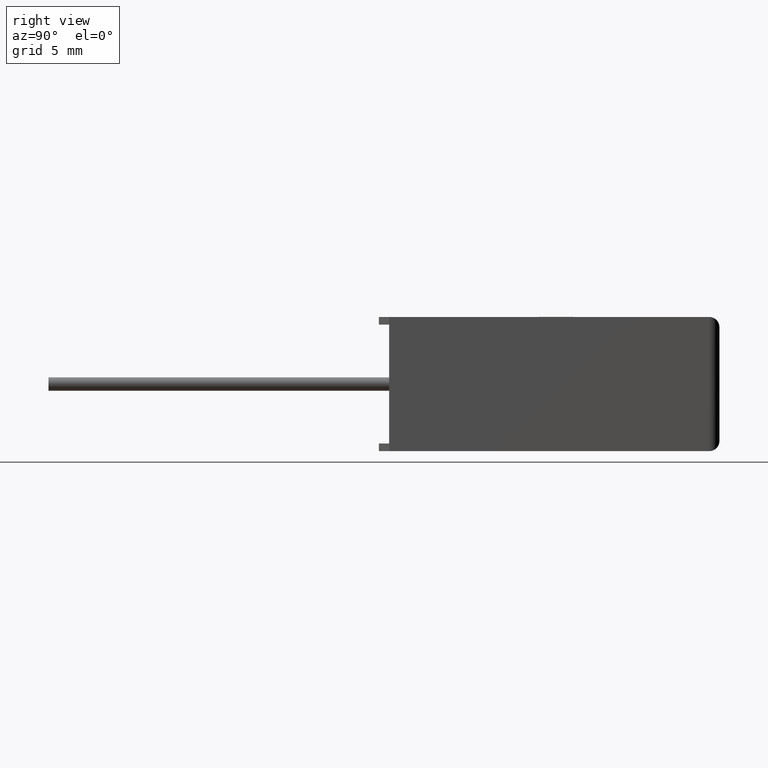
[diagram: clean part render]
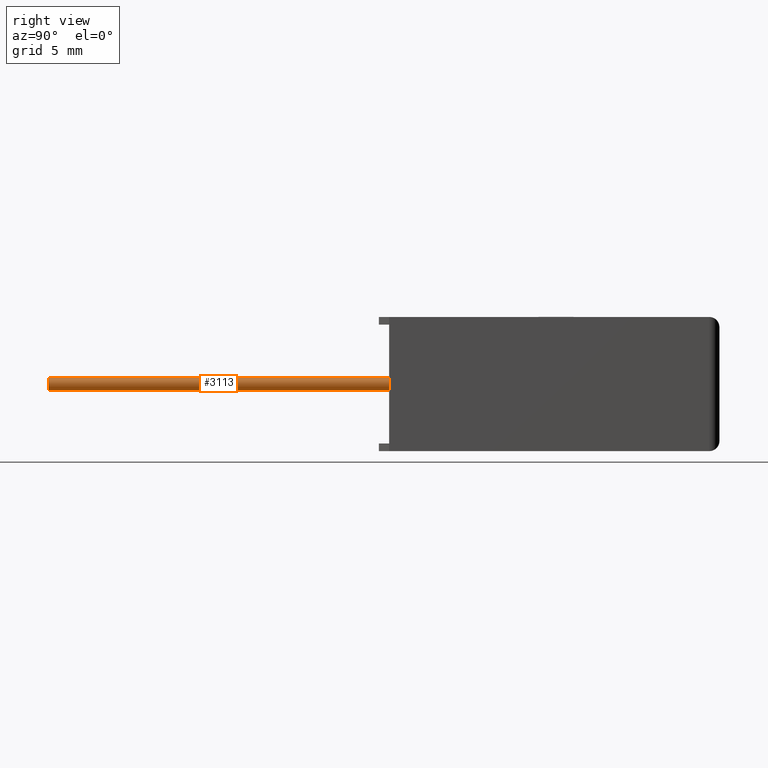
[diagram: same view with one face highlighted and labeled with its STEP entity id]
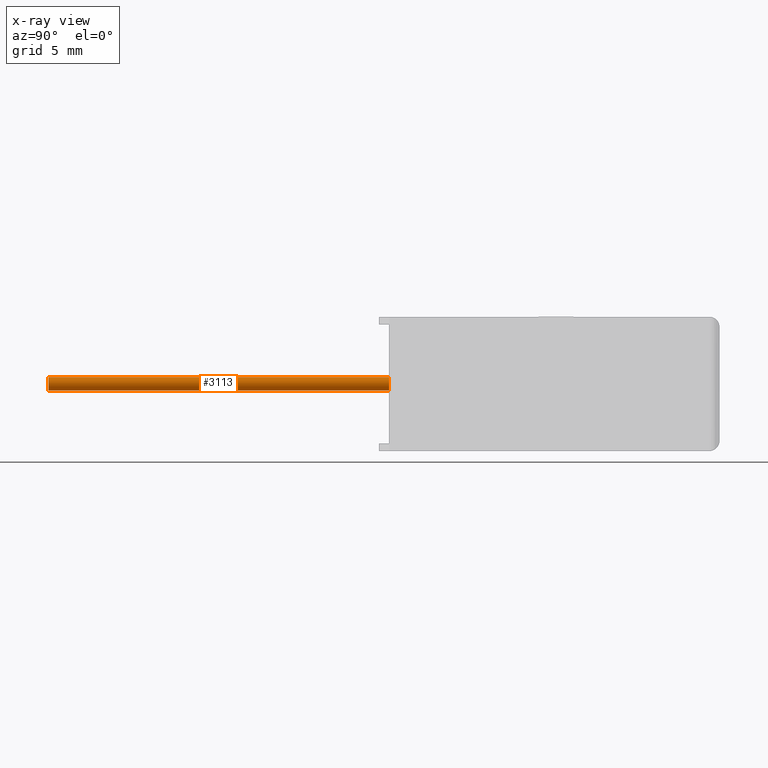
[diagram: x-ray of the same camera — body ghosted, the highlighted face saturated]
A machine part, right view. The second image highlights one B-rep face of the part: STEP entity #3113.
The next image is the same camera in x-ray: the body ghosted, the highlighted face saturated — about 0% of this face is hidden behind the body in this view.
In plain terms, the highlighted cylindrical surface (edge-blend (fillet) strip) has radius 0.325 mm, axis along (-0, 1, -0).
Its self-contained STEP definition (entity closure, byte-faithful):
#3 = VECTOR ( 'NONE', #3249, 1000.000000000000000 ) ;
#66 = DIRECTION ( 'NONE',  ( -0.0000000000000000000, 1.000000000000000000, -0.0000000000000000000 ) ) ;
#79 = FACE_OUTER_BOUND ( 'NONE', #1754, .T. ) ;
#86 = CARTESIAN_POINT ( 'NONE',  ( 11.25000000000000000, -16.50000000000000000, 3.575000000000000200 ) ) ;
#232 = EDGE_CURVE ( 'NONE', #2204, #402, #3102, .T. ) ;
#233 = CARTESIAN_POINT ( 'NONE',  ( 11.25000000000000000, -16.50000000000000000, 3.575000000000000200 ) ) ;
#402 = VERTEX_POINT ( 'NONE', #2904 ) ;
#454 = DIRECTION ( 'NONE',  ( -0.0000000000000000000, 1.000000000000000000, -0.0000000000000000000 ) ) ;
#473 = CARTESIAN_POINT ( 'NONE',  ( 11.25000000000000000, -16.50000000000000000, 2.924999999999999800 ) ) ;
#622 = EDGE_CURVE ( 'NONE', #1115, #1132, #1203, .T. ) ;
#822 = CARTESIAN_POINT ( 'NONE',  ( 11.25000000000000000, -16.50000000000000000, 3.250000000000000000 ) ) ;
#988 = CARTESIAN_POINT ( 'NONE',  ( 11.25000000000000000, 0.0000000000000000000, 3.250000000000000000 ) ) ;
#1083 = DIRECTION ( 'NONE',  ( -0.0000000000000000000, 1.000000000000000000, -0.0000000000000000000 ) ) ;
#1115 = VERTEX_POINT ( 'NONE', #2655 ) ;
#1132 = VERTEX_POINT ( 'NONE', #1678 ) ;
#1147 = ORIENTED_EDGE ( 'NONE', *, *, #232, .T. ) ;
#1203 = CIRCLE ( 'NONE', #1980, 0.3250000000000001800 ) ;
#1274 = EDGE_CURVE ( 'NONE', #2204, #1115, #2228, .T. ) ;
#1369 = CARTESIAN_POINT ( 'NONE',  ( 11.25000000000000000, -16.50000000000000000, 3.250000000000000000 ) ) ;
#1488 = ORIENTED_EDGE ( 'NONE', *, *, #622, .F. ) ;
#1497 = ORIENTED_EDGE ( 'NONE', *, *, #2501, .T. ) ;
#1510 = AXIS2_PLACEMENT_3D ( 'NONE', #822, #66, #1817 ) ;
#1678 = CARTESIAN_POINT ( 'NONE',  ( 11.25000000000000000, 0.0000000000000000000, 2.924999999999999800 ) ) ;
#1754 = EDGE_LOOP ( 'NONE', ( #1147, #1497, #1488, #2704 ) ) ;
#1762 = DIRECTION ( 'NONE',  ( 0.0000000000000000000, 0.0000000000000000000, -1.000000000000000000 ) ) ;
#1772 = LINE ( 'NONE', #473, #2190 ) ;
#1781 = DIRECTION ( 'NONE',  ( -0.0000000000000000000, 1.000000000000000000, -0.0000000000000000000 ) ) ;
#1817 = DIRECTION ( 'NONE',  ( 0.0000000000000000000, 0.0000000000000000000, -1.000000000000000000 ) ) ;
#1980 = AXIS2_PLACEMENT_3D ( 'NONE', #988, #454, #1762 ) ;
#1992 = AXIS2_PLACEMENT_3D ( 'NONE', #1369, #1083, #2856 ) ;
#2190 = VECTOR ( 'NONE', #1781, 1000.000000000000000 ) ;
#2204 = VERTEX_POINT ( 'NONE', #86 ) ;
#2228 = LINE ( 'NONE', #233, #3 ) ;
#2404 = CYLINDRICAL_SURFACE ( 'NONE', #1992, 0.3250000000000001800 ) ;
#2501 = EDGE_CURVE ( 'NONE', #402, #1132, #1772, .T. ) ;
#2655 = CARTESIAN_POINT ( 'NONE',  ( 11.25000000000000000, 0.0000000000000000000, 3.575000000000000200 ) ) ;
#2704 = ORIENTED_EDGE ( 'NONE', *, *, #1274, .F. ) ;
#2856 = DIRECTION ( 'NONE',  ( 0.0000000000000000000, 0.0000000000000000000, 1.000000000000000000 ) ) ;
#2904 = CARTESIAN_POINT ( 'NONE',  ( 11.25000000000000000, -16.50000000000000000, 2.924999999999999800 ) ) ;
#3102 = CIRCLE ( 'NONE', #1510, 0.3250000000000001800 ) ;
#3113 = ADVANCED_FACE ( 'NONE', ( #79 ), #2404, .T. ) ;
#3249 = DIRECTION ( 'NONE',  ( -0.0000000000000000000, 1.000000000000000000, -0.0000000000000000000 ) ) ;